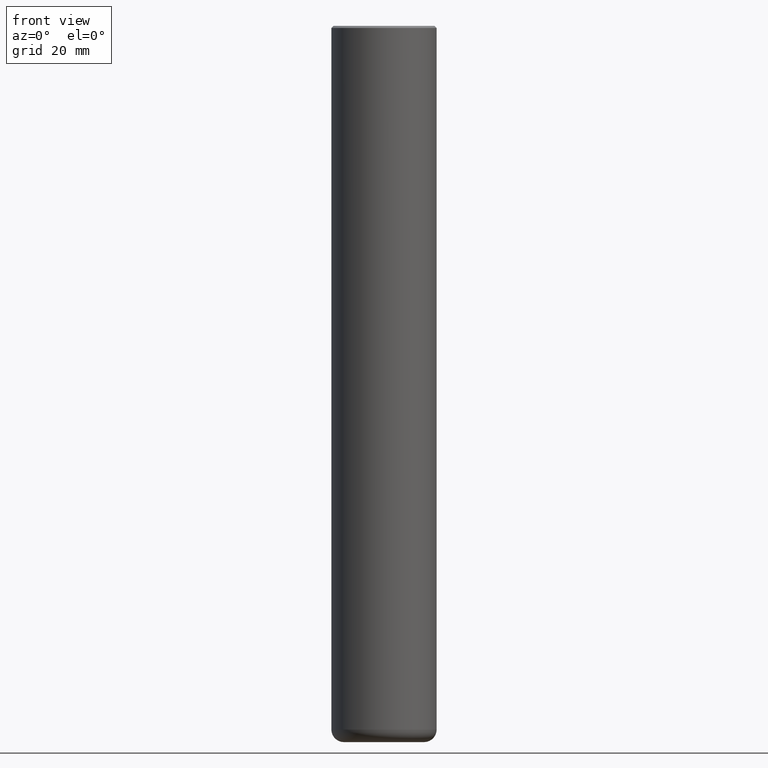
[diagram: clean part render]
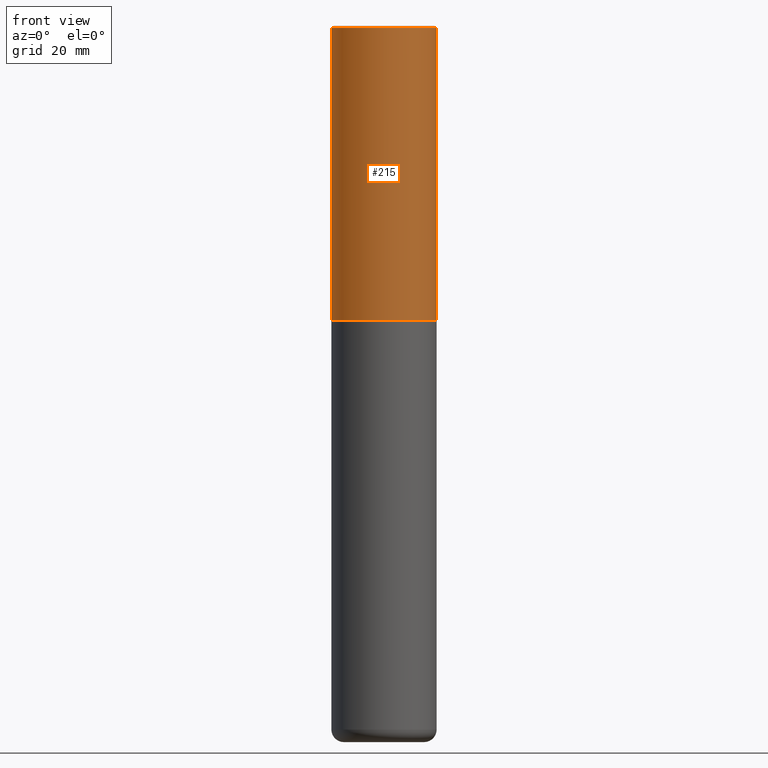
[diagram: same view with one face highlighted and labeled with its STEP entity id]
A machine part, front view. The second image highlights one B-rep face of the part: STEP entity #215.
In plain terms, the highlighted cylindrical surface (partial cylindrical patch) has radius 12.5006 mm, axis along (-0, 0, 1).
Its self-contained STEP definition (entity closure, byte-faithful):
#17 = VERTEX_POINT ( 'NONE', #55 ) ;
#55 = CARTESIAN_POINT ( 'NONE',  ( 0.4921500000000003094, -1.305534702220228032E-14, -2.754900000000000126 ) ) ;
#63 = DIRECTION ( 'NONE',  ( 1.000000000000000000, -6.982962677686265922E-15, 0.000000000000000000 ) ) ;
#70 = CARTESIAN_POINT ( 'NONE',  ( 0.4921500000000000874, -3.436665081823296565E-15, 2.399810400207970163E-29 ) ) ;
#89 = CARTESIAN_POINT ( 'NONE',  ( 0.000000000000000000, 0.000000000000000000, 0.000000000000000000 ) ) ;
#101 = DIRECTION ( 'NONE',  ( -2.445468806185136877E-29, 3.491481338843145188E-15, 1.000000000000000000 ) ) ;
#111 = CARTESIAN_POINT ( 'NONE',  ( -0.4921499999999999764, 3.366835455046432478E-15, -0.02000000000000010797 ) ) ;
#129 = VERTEX_POINT ( 'NONE', #262 ) ;
#133 = CARTESIAN_POINT ( 'NONE',  ( 6.737022014159432629E-29, -9.618681940378981383E-15, -2.754900000000000126 ) ) ;
#143 = ORIENTED_EDGE ( 'NONE', *, *, #375, .T. ) ;
#155 = ORIENTED_EDGE ( 'NONE', *, *, #344, .T. ) ;
#162 = CIRCLE ( 'NONE', #362, 0.4921499999999999764 ) ;
#163 = ORIENTED_EDGE ( 'NONE', *, *, #335, .F. ) ;
#164 = DIRECTION ( 'NONE',  ( 1.000000000000000000, -6.982962677686265922E-15, 4.876176775795935793E-29 ) ) ;
#196 = FACE_OUTER_BOUND ( 'NONE', #348, .T. ) ;
#198 = DIRECTION ( 'NONE',  ( -2.445468806185136597E-29, 3.491481338843145583E-15, 1.000000000000000000 ) ) ;
#203 = CARTESIAN_POINT ( 'NONE',  ( -0.4921500000000000874, 3.496936074043333686E-15, -2.420853904668952350E-29 ) ) ;
#207 = VECTOR ( 'NONE', #301, 39.37007874015748143 ) ;
#215 = ADVANCED_FACE ( 'NONE', ( #196 ), #257, .T. ) ;
#221 = EDGE_CURVE ( 'NONE', #289, #313, #162, .T. ) ;
#247 = CIRCLE ( 'NONE', #270, 0.4921500000000003094 ) ;
#254 = ORIENTED_EDGE ( 'NONE', *, *, #221, .F. ) ;
#257 = CYLINDRICAL_SURFACE ( 'NONE', #415, 0.4921500000000000874 ) ;
#262 = CARTESIAN_POINT ( 'NONE',  ( -0.4921500000000003094, -1.347319709534584908E-15, -2.754900000000000126 ) ) ;
#270 = AXIS2_PLACEMENT_3D ( 'NONE', #133, #274, #336 ) ;
#274 = DIRECTION ( 'NONE',  ( -2.445468806185136597E-29, 3.491481338843145583E-15, 1.000000000000000000 ) ) ;
#289 = VERTEX_POINT ( 'NONE', #111 ) ;
#295 = CARTESIAN_POINT ( 'NONE',  ( 4.890937612370299433E-31, -6.982962677686328587E-17, -0.02000000000000010797 ) ) ;
#301 = DIRECTION ( 'NONE',  ( -2.445468806185136877E-29, 3.491481338843145188E-15, 1.000000000000000000 ) ) ;
#313 = VERTEX_POINT ( 'NONE', #389 ) ;
#328 = DIRECTION ( 'NONE',  ( -2.445468806185136597E-29, 3.491481338843145583E-15, 1.000000000000000000 ) ) ;
#335 = EDGE_CURVE ( 'NONE', #129, #289, #361, .T. ) ;
#336 = DIRECTION ( 'NONE',  ( 1.000000000000000000, -6.982962677686265922E-15, 0.000000000000000000 ) ) ;
#344 = EDGE_CURVE ( 'NONE', #17, #313, #364, .T. ) ;
#348 = EDGE_LOOP ( 'NONE', ( #163, #143, #155, #254 ) ) ;
#361 = LINE ( 'NONE', #203, #378 ) ;
#362 = AXIS2_PLACEMENT_3D ( 'NONE', #295, #198, #63 ) ;
#364 = LINE ( 'NONE', #70, #207 ) ;
#375 = EDGE_CURVE ( 'NONE', #129, #17, #247, .T. ) ;
#378 = VECTOR ( 'NONE', #101, 39.37007874015748143 ) ;
#389 = CARTESIAN_POINT ( 'NONE',  ( 0.4921499999999999764, -3.446223716380122349E-15, -0.02000000000000010797 ) ) ;
#415 = AXIS2_PLACEMENT_3D ( 'NONE', #89, #328, #164 ) ;